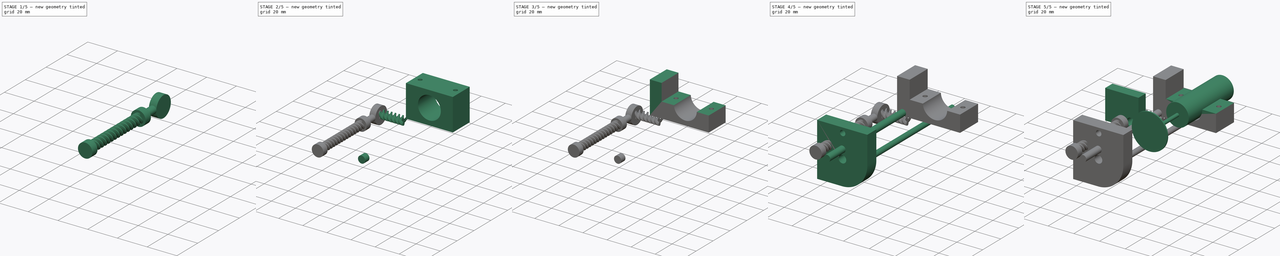
[diagram: build sequence overview — one tinted view per stage of 5, left to right]
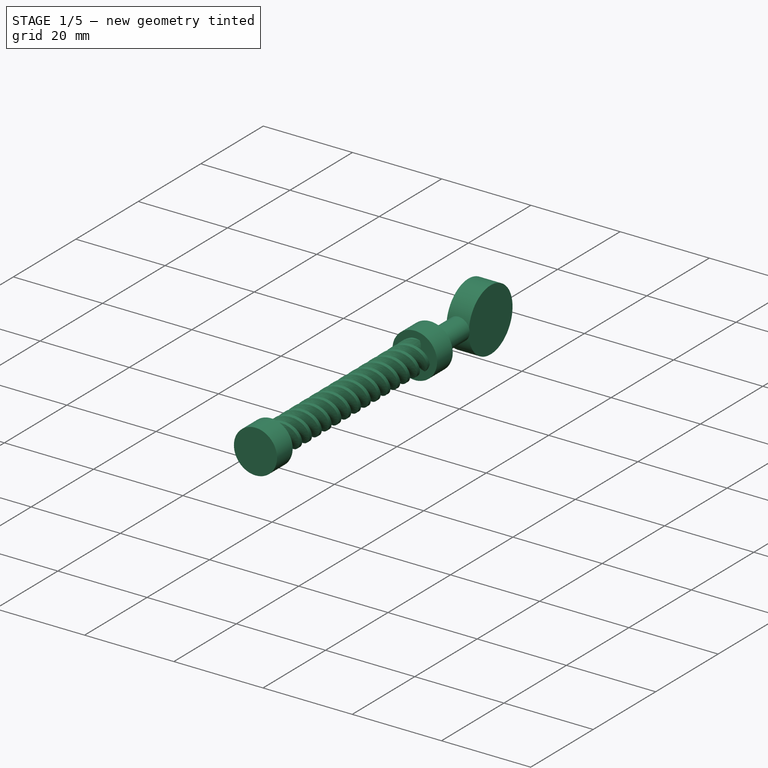
[diagram: stage 1 of 5 — iso view after this stage's code; geometry added in this stage tinted green]
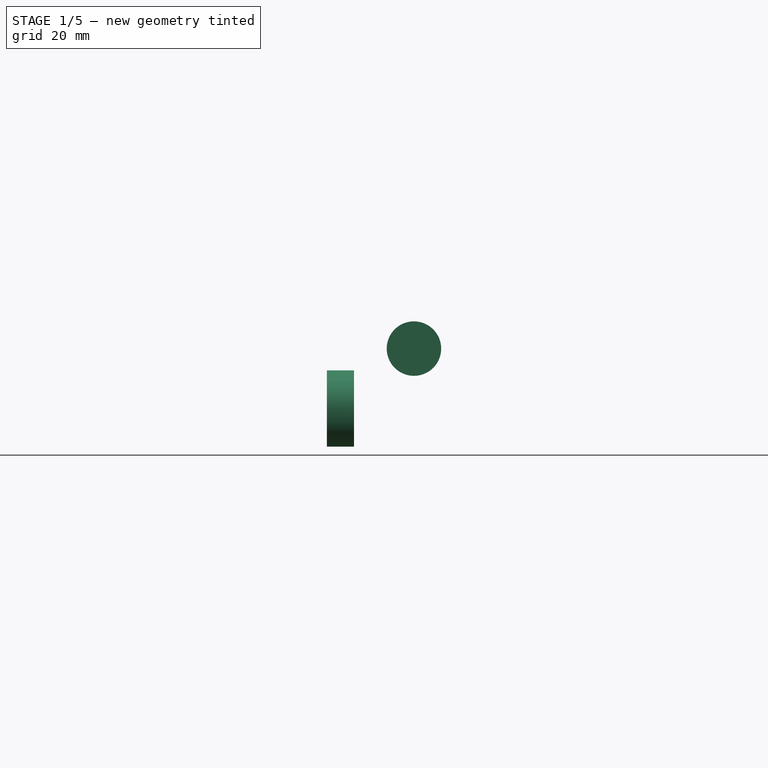
[diagram: stage 1 of 5 — front view after this stage's code; geometry added in this stage tinted green]
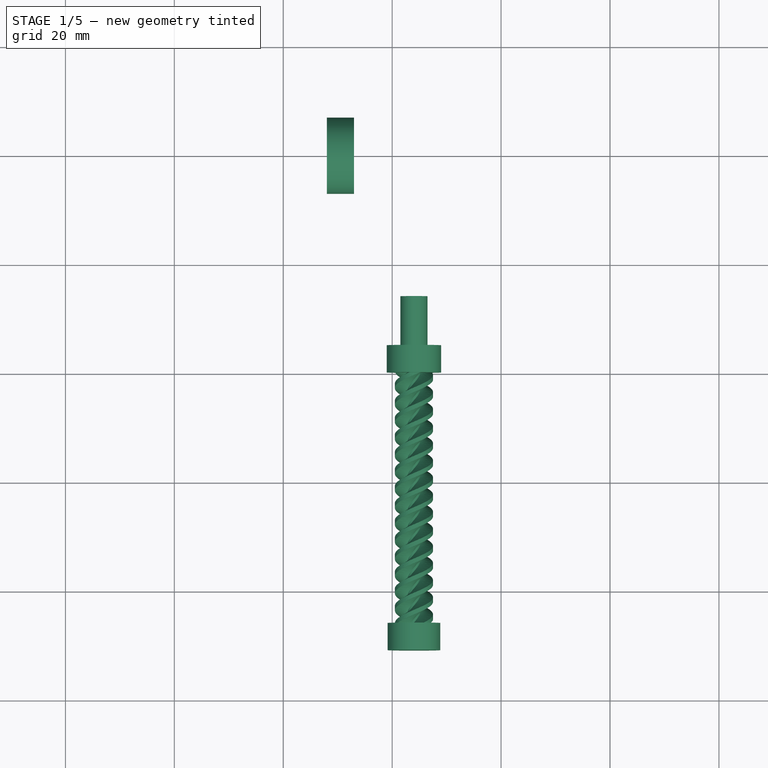
[diagram: stage 1 of 5 — top view after this stage's code; geometry added in this stage tinted green]
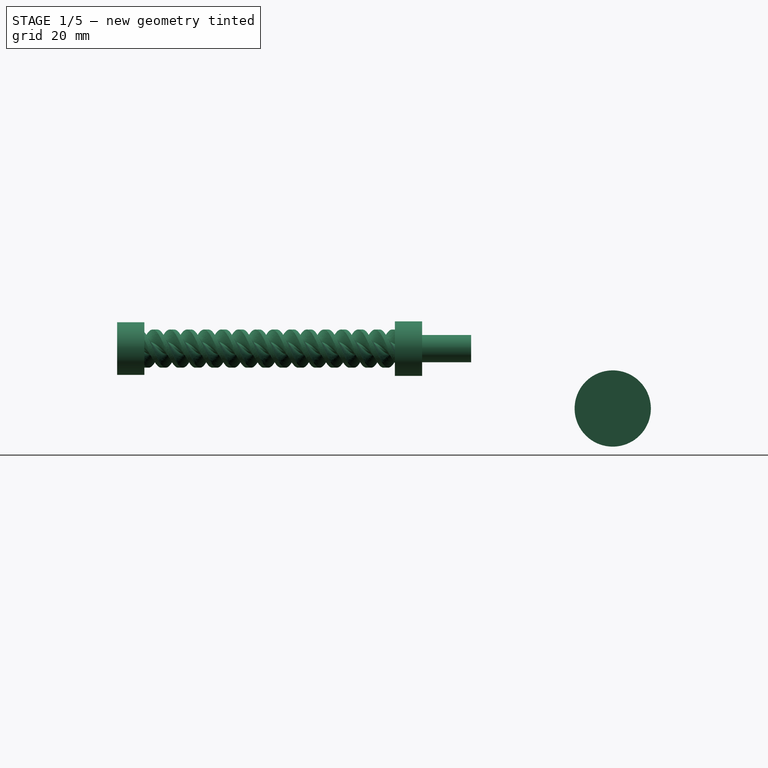
[diagram: stage 1 of 5 — right view after this stage's code; geometry added in this stage tinted green]
FCSTD DOCUMENT  (FreeCAD 0.19R24054 (Git))
Label: rod cutting attachment
License: All rights reserved
LicenseURL: http://en.wikipedia.org/wiki/All_rights_reserved
objects: Sketcher::SketchObject×14, PartDesign::Pad×10, PartDesign::Body×7, Part::Cylinder×6, Part::FeaturePython×5, PartDesign::Pocket×4, PartDesign::ShapeBinder×2, Part::MultiFuse×2, App::DocumentObjectGroup×1, PartDesign::FeatureBase×1
note: 65 computed .brp shape members not serialized (recipe doc carries the construction recipe); baked Part::Feature solids carry a one-line shape summary decoded from their .brp

FEATURE [PartDesign::Body] Body005  label="stopper"
  Group = -> [Sketch010,Pad008,Sketch011,Pocket002]
  Origin = -> Origin005
  Placement = pos=(4,0,-2) rot=(0,0,1;0rad)
  Tip = -> Pocket002
FEATURE [Part::FeaturePython] wormgear  label="distancer screw"  # WARN: FeaturePython — macro-defined, semantics opaque (R4)
  Placement = pos=(-36,-86,-11) rot=(1,0,0;4.71239rad)
  beta = 30.9638
  clearance = 0.25
  diameter = 5
  head = 0
  height = 50
  module = 1
  pressure_angle = 20
  reverse_pitch = false
  teeth = 3
  version = 0.0.3
FEATURE [PartDesign::ShapeBinder] ShapeBinder001
  Placement = pos=(-36,-86,-11) rot=(-1,0,0;1.5708rad)
  Support = -> [wormgear]
  TraceSupport = false
FEATURE [Sketcher::SketchObject] Sketch012
  FullyConstrained = false
  MapMode = 5
  Placement = pos=(-36,-86,-11) rot=(1,0,0;1.5708rad)
  Support = -> [ShapeBinder001]
  sketch-geometry (1):
    g0: Circle CenterX=0 CenterY=0 CenterZ=0 NormalX=0 NormalY=0 NormalZ=1 AngleXU=0 Radius=4.83098
  constraints (1):
    c: Coincident(g0,g-1)
FEATURE [PartDesign::Pad] Pad009
  Direction = (1,1,1)
  Length = 5
  Length2 = 100
  Placement = pos=(-36,-86,-11) rot=(-1,0,0;1.5708rad)
  Profile = -> Sketch012
  Refine = true
  Type = 0
FEATURE [Part::Cylinder] Cylinder003  label="lock handle"
  Angle = 360
  AttacherType = Attacher::AttachEngine3D
  Height = 5
  Placement = pos=(-47,0,-22) rot=(0,-1,0;1.5708rad)
  Radius = 7
FEATURE [Part::Cylinder] Cylinder004  label="Cylinder"
  Angle = 360
  AttacherType = Attacher::AttachEngine3D
  Height = 12
  Placement = pos=(-36,-38,-11) rot=(-0.57735,-0.57735,-0.57735;2.0944rad)
  Radius = 2.5
FEATURE [Part::Cylinder] Cylinder005
  Angle = 360
  AttacherType = Attacher::AttachEngine3D
  Height = 5
  Placement = pos=(-36,-35,-11) rot=(1,0,0;1.5708rad)
  Radius = 5
FEATURE [Part::MultiFuse] Fusion001  label="distancer"
  Refine = true
  Shapes = -> [wormgear,Cylinder004,Cylinder005,Body006]
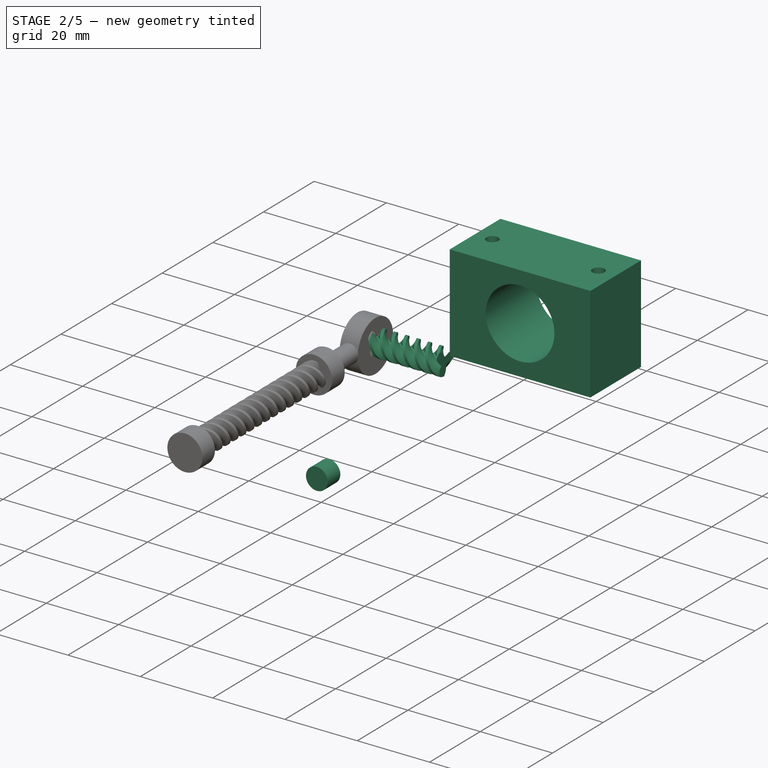
[diagram: stage 2 of 5 — iso view after this stage's code; geometry added in this stage tinted green]
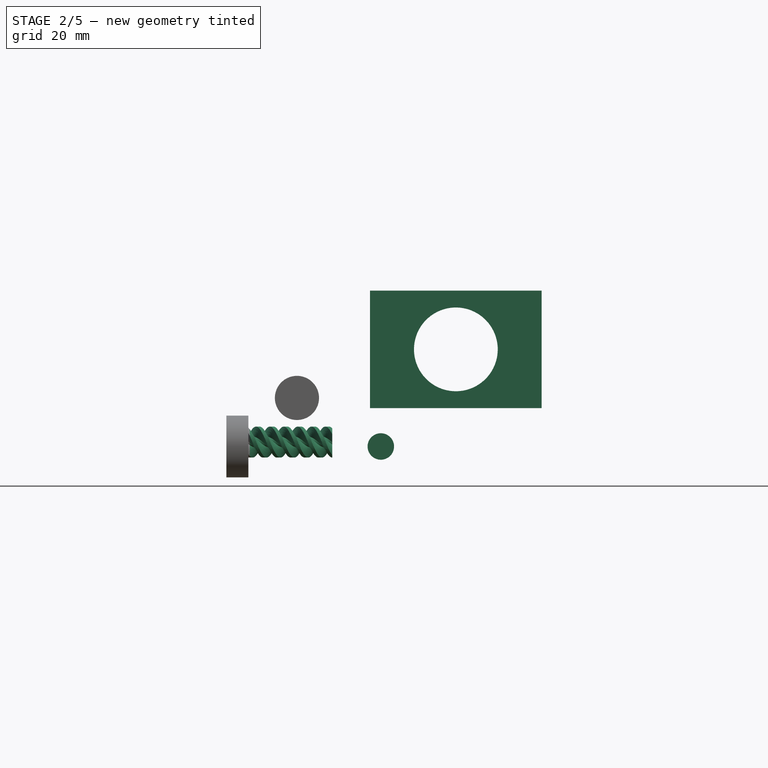
[diagram: stage 2 of 5 — front view after this stage's code; geometry added in this stage tinted green]
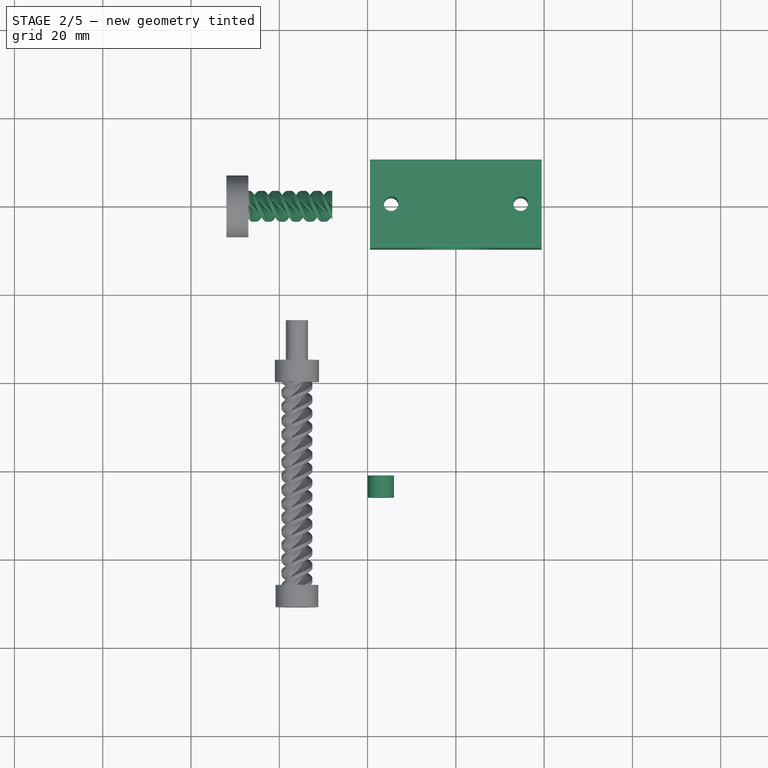
[diagram: stage 2 of 5 — top view after this stage's code; geometry added in this stage tinted green]
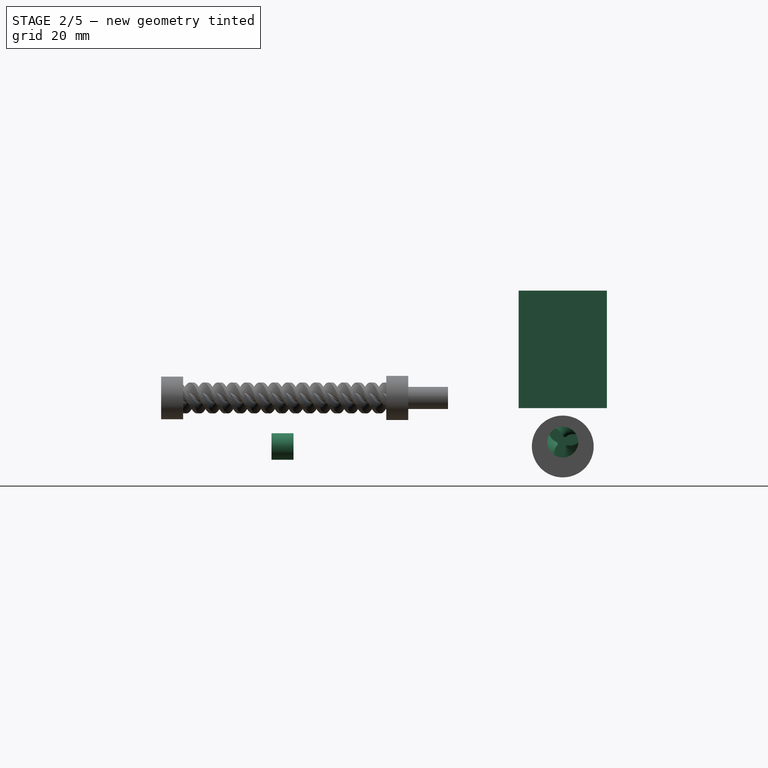
[diagram: stage 2 of 5 — right view after this stage's code; geometry added in this stage tinted green]
FEATURE [Sketcher::SketchObject] Sketch
  FullyConstrained = false
  MapMode = 5
  Placement = pos=(0,0,0) rot=(1,0,0;1.5708rad)
  Support = -> [XZ_Plane]
  sketch-geometry (5):
    g0: Circle CenterX=0 CenterY=0 CenterZ=0 NormalX=0 NormalY=0 NormalZ=1 AngleXU=0 Radius=9.48676
    g1: LineSegment StartX=-19.4408 StartY=13.3116 StartZ=0 EndX=19.4408 EndY=13.3116 EndZ=0
    g2: LineSegment StartX=19.4408 StartY=13.3116 StartZ=0 EndX=19.4408 EndY=-13.3116 EndZ=0
    g3: LineSegment StartX=19.4408 StartY=-13.3116 StartZ=0 EndX=-19.4408 EndY=-13.3116 EndZ=0
    g4: LineSegment StartX=-19.4408 StartY=-13.3116 StartZ=0 EndX=-19.4408 EndY=13.3116 EndZ=0
  constraints (10):
    c: Coincident(g0,g-1)
    c: Coincident(g1,g2)
    c: Coincident(g2,g3)
    c: Coincident(g3,g4)
    c: Coincident(g4,g1)
    c: Horizontal(g1)
    c: Horizontal(g3)
    c: Vertical(g2)
    c: Vertical(g4)
    c: Symmetric(g2,g1,g0)
FEATURE [PartDesign::Pad] Pad
  Direction = (1,1,1)
  Length = 20
  Length2 = 100
  Midplane = true
  Placement = pos=(0,0,0) rot=(1,0,0;1.5708rad)
  Profile = -> Sketch
  Refine = true
  Type = 0
FEATURE [PartDesign::Body] Body001
  Group = -> [Sketch001,Pad001]
  Origin = -> Origin001
  Tip = -> Pad001
FEATURE [Sketcher::SketchObject] Sketch002
  FullyConstrained = false
  MapMode = 5
  Support = -> [XY_Plane]
  sketch-geometry (2):
    g0: Circle CenterX=14.6758 CenterY=0 CenterZ=0 NormalX=0 NormalY=0 NormalZ=1 AngleXU=0 Radius=1.66625
    g1: Circle CenterX=-14.6758 CenterY=0 CenterZ=0 NormalX=0 NormalY=0 NormalZ=1 AngleXU=0 Radius=1.66625
  constraints (3):
    c: PointOnObject(g0,g-1)
    c: Equal(g1,g0)
    c: Symmetric(g1,g0,g-2)
FEATURE [PartDesign::Pocket] Pocket
  BaseFeature = -> Pad
  Length = 5
  Length2 = 100
  Midplane = true
  Placement = pos=(0,0,0) rot=(1,0,0;1.5708rad)
  Profile = -> Sketch002
  Refine = true
  Type = 1
FEATURE [PartDesign::Body] Body003  label="spindle block low"
  BaseFeature = -> Slice_child3
  Group = -> [BaseFeature,ShapeBinder,Sketch006,Pad005,Sketch014,Pad010]
  Origin = -> Origin003
  Placement = pos=(0,0,-13) rot=(0,0,1;0rad)
  Tip = -> Pad010
FEATURE [Part::Cylinder] Cylinder002  label="protection"
  Angle = 360
  AttacherType = Attacher::AttachEngine3D
  Height = 5
  Placement = pos=(-17,-61,-22) rot=(-1,0,0;4.71239rad)
  Radius = 3
FEATURE [Part::FeaturePython] wormgear001  label="lock gear"  # WARN: FeaturePython — macro-defined, semantics opaque (R4)
  Placement = pos=(-28,0,-21) rot=(0,1,0;4.71239rad)
  beta = 30.9638
  clearance = 0.25
  diameter = 5
  head = 0
  height = 20
  module = 1
  pressure_angle = 20
  reverse_pitch = false
  teeth = 3
  version = 0.0.3
FEATURE [Part::MultiFuse] Fusion  label="lock"
  Refine = true
  Shapes = -> [wormgear001,Cylinder003]
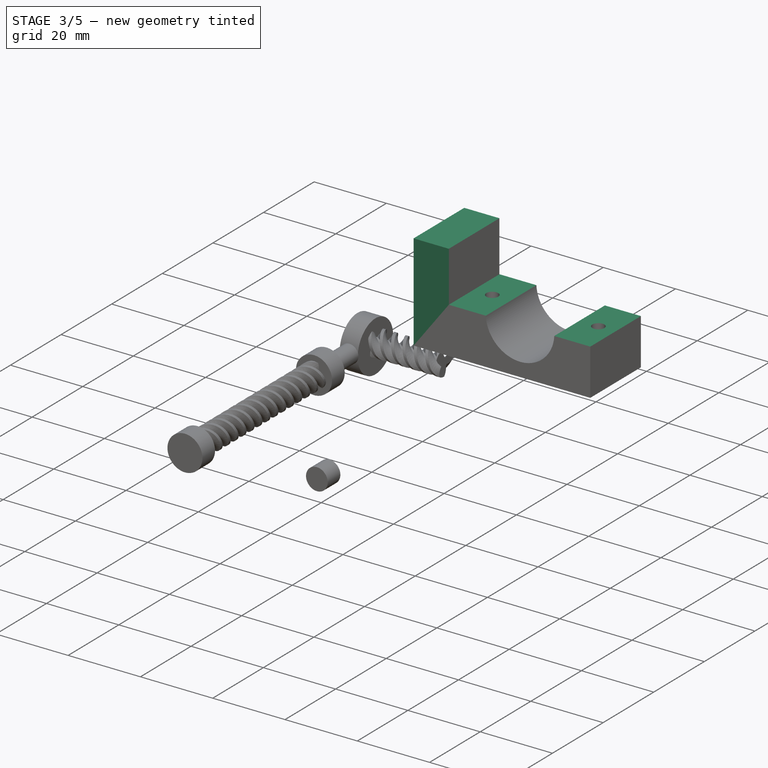
[diagram: stage 3 of 5 — iso view after this stage's code; geometry added in this stage tinted green]
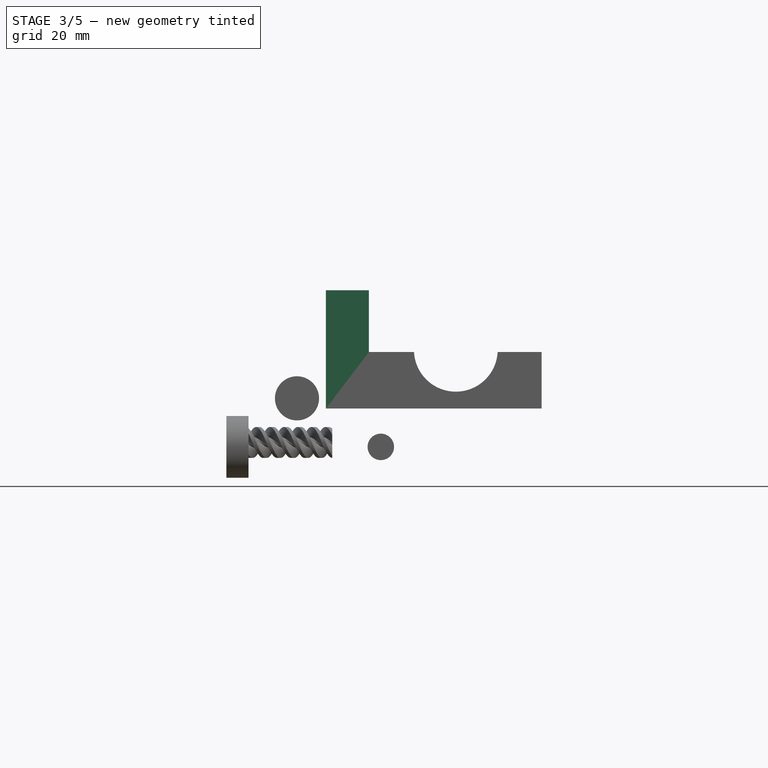
[diagram: stage 3 of 5 — front view after this stage's code; geometry added in this stage tinted green]
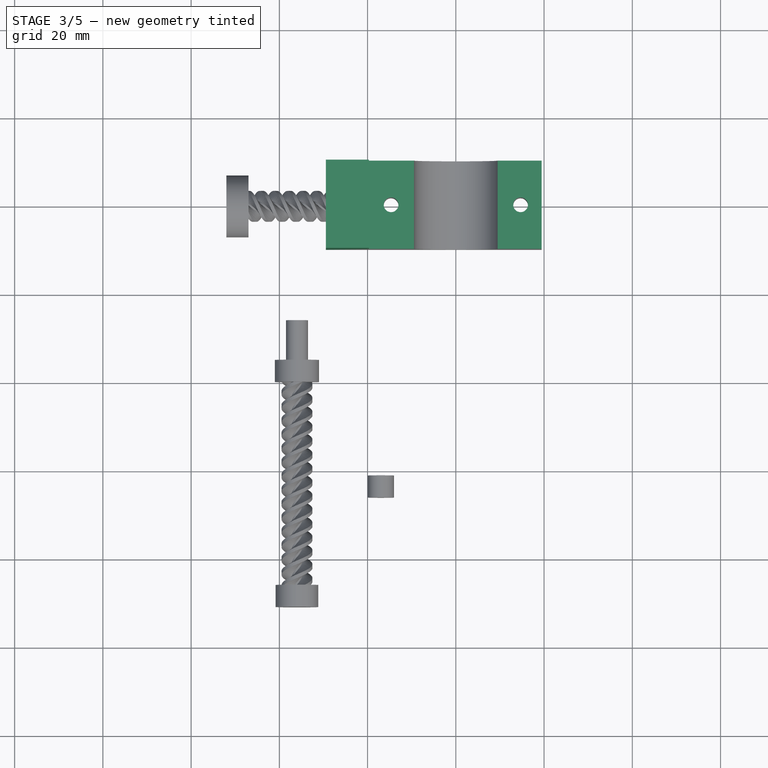
[diagram: stage 3 of 5 — top view after this stage's code; geometry added in this stage tinted green]
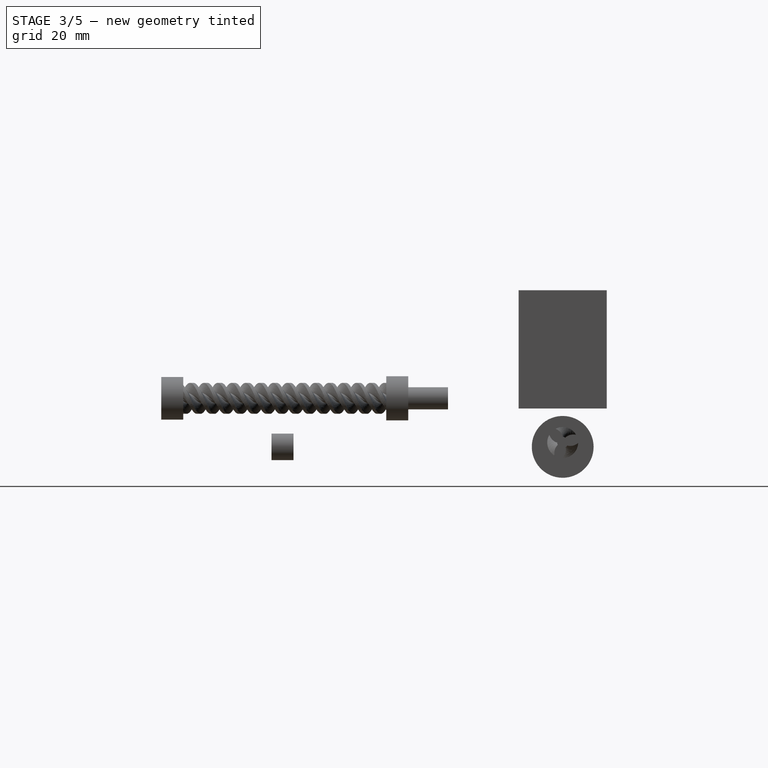
[diagram: stage 3 of 5 — right view after this stage's code; geometry added in this stage tinted green]
FEATURE [Sketcher::SketchObject] Sketch001
  FullyConstrained = false
  MapMode = 5
  Support = -> [XY_Plane001]
  sketch-geometry (4):
    g0: LineSegment StartX=-31.0492 StartY=18.9281 StartZ=0 EndX=30.4145 EndY=18.9281 EndZ=0
    g1: LineSegment StartX=30.4145 StartY=18.9281 StartZ=0 EndX=30.4145 EndY=-16.7716 EndZ=0
    g2: LineSegment StartX=30.4145 StartY=-16.7716 StartZ=0 EndX=-31.0492 EndY=-16.7716 EndZ=0
    g3: LineSegment StartX=-31.0492 StartY=-16.7716 StartZ=0 EndX=-31.0492 EndY=18.9281 EndZ=0
  constraints (8):
    c: Coincident(g0,g1)
    c: Coincident(g1,g2)
    c: Coincident(g2,g3)
    c: Coincident(g3,g0)
    c: Horizontal(g0)
    c: Horizontal(g2)
    c: Vertical(g1)
    c: Vertical(g3)
FEATURE [PartDesign::Pad] Pad001
  Direction = (1,1,1)
  Length = 1
  Length2 = 100
  Midplane = true
  Profile = -> Sketch001
  Refine = true
  Type = 0
FEATURE [PartDesign::Body] Body
  Group = -> [Sketch,Pad,Sketch002,Pocket]
  Origin = -> Origin
  Tip = -> Pocket
FEATURE [Part::FeaturePython] Slice  # WARN: FeaturePython — macro-defined, semantics opaque (R4)
  Base = -> Body
  Mode = 1
  Tolerance = 0
  Tools = -> [Body001]
FEATURE [Part::FeaturePython] Slice_child3  label="Slice.3"  # WARN: FeaturePython — macro-defined, semantics opaque (R4)
  Base = -> Slice
  FilterType = 1
  Invert = false
  OverrideMaxVal = 0
  WindowFrom = 80
  WindowTo = 100
  items = 3
FEATURE [PartDesign::Body] Body002  label="spindle"
  Group = -> [Sketch003,Pad002,Sketch004,Pad003,Sketch005,Pad004]
  Origin = -> Origin002
  Placement = pos=(0,0,-13) rot=(0,0,1;0rad)
  Tip = -> Pad004
FEATURE [PartDesign::FeatureBase] BaseFeature
  BaseFeature = -> Slice_child3
FEATURE [PartDesign::ShapeBinder] ShapeBinder
  Support = -> [BaseFeature]
  TraceSupport = false
FEATURE [Sketcher::SketchObject] Sketch006
  ExternalGeometry = -> [BaseFeature]
  FullyConstrained = true
  MapMode = 5
  Placement = pos=(-19.4408,0,0) rot=(0.57735,-0.57735,-0.57735;2.0944rad)
  Support = -> [ShapeBinder]
  sketch-geometry (4):
    g0: LineSegment StartX=-10 StartY=-13.3116 StartZ=0 EndX=10 EndY=-13.3116 EndZ=0
    g1: LineSegment StartX=10 StartY=-13.3116 StartZ=0 EndX=10 EndY=-0.5 EndZ=0
    g2: LineSegment StartX=10 StartY=-0.5 StartZ=0 EndX=-10 EndY=-0.5 EndZ=0
    g3: LineSegment StartX=-10 StartY=-0.5 StartZ=0 EndX=-10 EndY=-13.3116 EndZ=0
  constraints (9):
    c: Coincident(g0,g1)
    c: Coincident(g1,g2)
    c: Coincident(g2,g3)
    c: Coincident(g3,g0)
    c: Horizontal(g2)
    c: Vertical(g1)
    c: Coincident(g0,g-3)
    c: Coincident(g0,g-3)
    c: Coincident(g2,g-4)
FEATURE [PartDesign::Pad] Pad005
  BaseFeature = -> BaseFeature
  Direction = (1,1,1)
  Length = 10
  Length2 = 100
  Profile = -> Sketch006
  Refine = true
  Type = 0
FEATURE [Sketcher::SketchObject] Sketch014
  ExternalGeometry = -> [Pad005]
  FullyConstrained = false
  MapMode = 5
  Placement = pos=(2e-16,-1e-16,-0.5) rot=(0,0,1;0rad)
  Support = -> [Pad005]
  sketch-geometry (4):
    g0: LineSegment StartX=-29.4408 StartY=10 StartZ=0 EndX=-19.7025 EndY=10 EndZ=0
    g1: LineSegment StartX=-19.7025 StartY=10 StartZ=0 EndX=-19.7025 EndY=-10 EndZ=0
    g2: LineSegment StartX=-19.7025 StartY=-10 StartZ=0 EndX=-29.4408 EndY=-10 EndZ=0
    g3: LineSegment StartX=-29.4408 StartY=-10 StartZ=0 EndX=-29.4408 EndY=10 EndZ=0
  constraints (9):
    c: Coincident(g0,g1)
    c: Coincident(g1,g2)
    c: Coincident(g2,g3)
    c: Coincident(g3,g0)
    c: Horizontal(g0)
    c: Horizontal(g2)
    c: Vertical(g1)
    c: Coincident(g0,g-3)
    c: Coincident(g-4,g2)
FEATURE [PartDesign::Pad] Pad010
  BaseFeature = -> Pad005
  Direction = (1,1,1)
  Length = 14
  Length2 = 100
  Profile = -> Sketch014
  Refine = true
  Type = 0
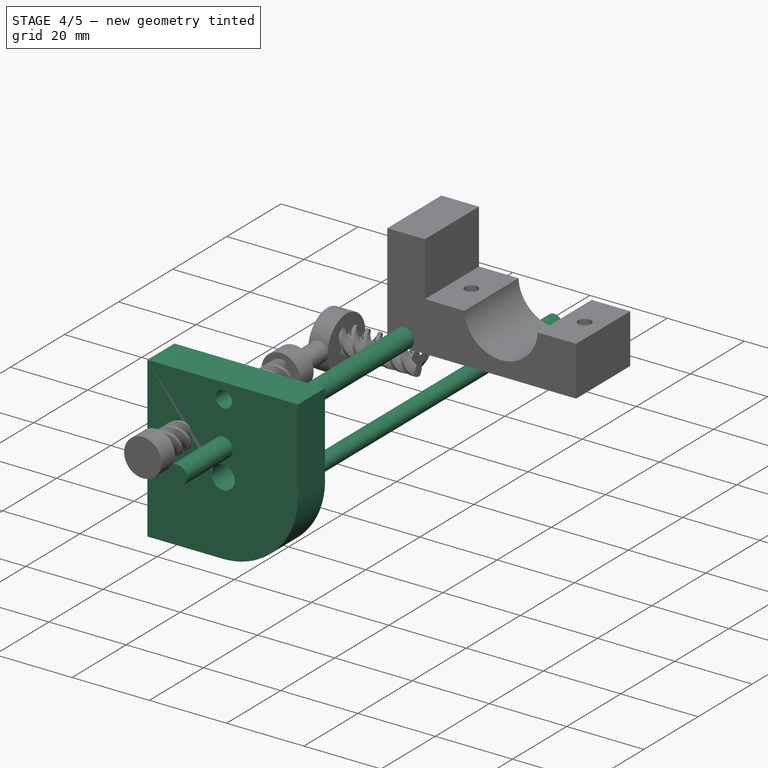
[diagram: stage 4 of 5 — iso view after this stage's code; geometry added in this stage tinted green]
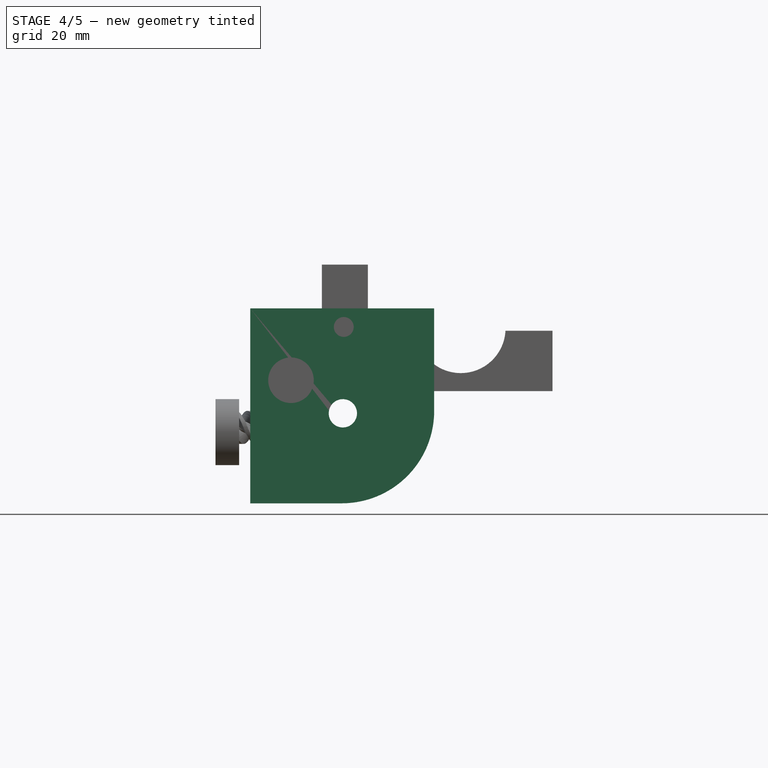
[diagram: stage 4 of 5 — front view after this stage's code; geometry added in this stage tinted green]
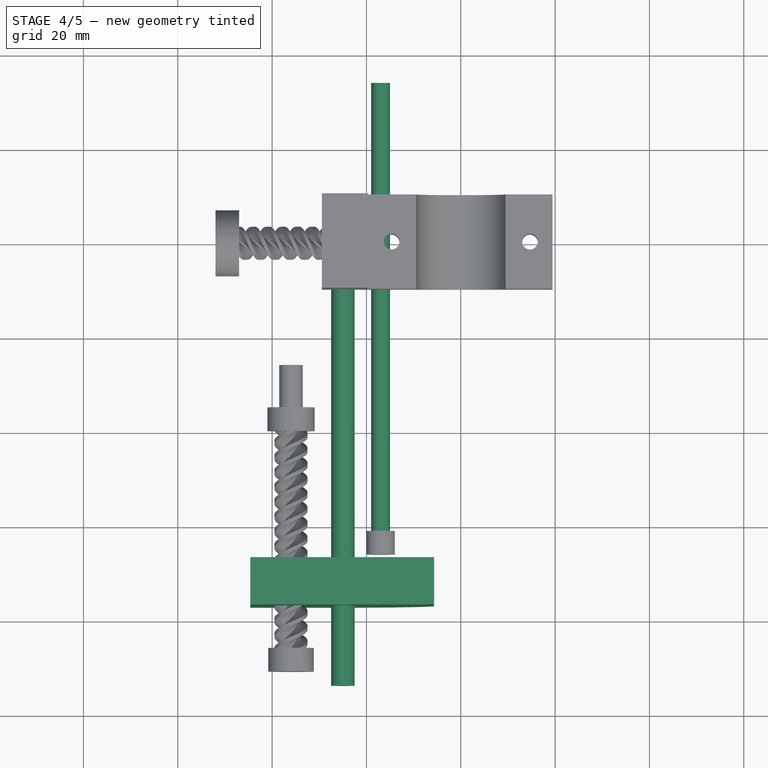
[diagram: stage 4 of 5 — top view after this stage's code; geometry added in this stage tinted green]
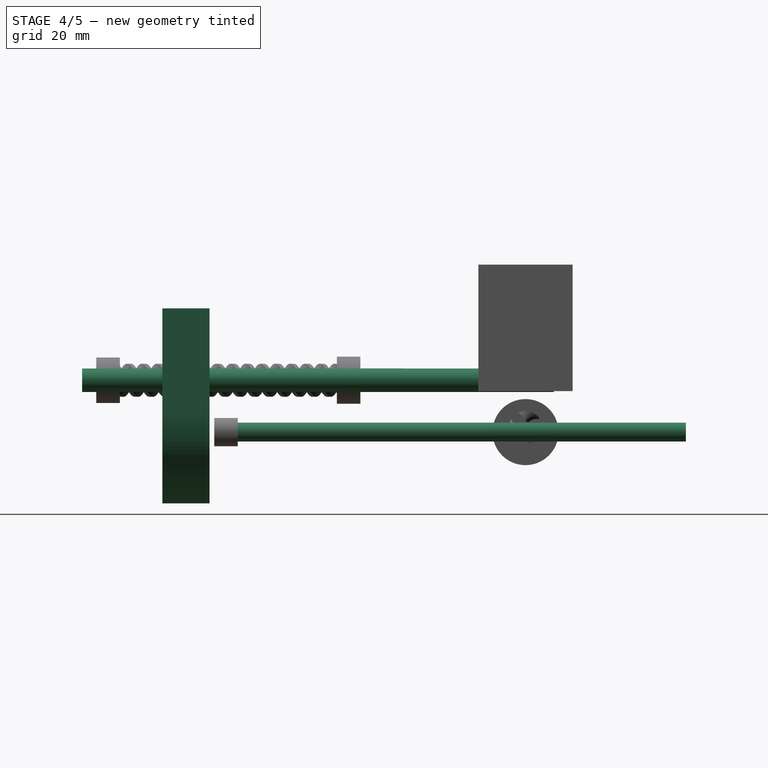
[diagram: stage 4 of 5 — right view after this stage's code; geometry added in this stage tinted green]
FEATURE [Sketcher::SketchObject] Sketch007
  AttachmentOffset = pos=(0,0,67) rot=(0,0,1;0rad)
  FullyConstrained = false
  MapMode = 5
  Placement = pos=(0,-67,1.49e-14) rot=(1,0,0;1.5708rad)
  Support = -> [XZ_Plane004]
  sketch-geometry (5):
    g0: LineSegment StartX=-44.6272 StartY=4.22384 StartZ=0 EndX=-5.63904 EndY=4.22384 EndZ=0
    g1: LineSegment StartX=-5.63904 StartY=4.22384 StartZ=0 EndX=-5.63904 EndY=-17.504 EndZ=0
    g2: LineSegment StartX=-25.2347 StartY=-37.0996 StartZ=0 EndX=-44.6272 EndY=-37.0996 EndZ=0
    g3: LineSegment StartX=-44.6272 StartY=-37.0996 StartZ=0 EndX=-44.6272 EndY=4.22384 EndZ=0
    g4: ArcOfCircle CenterX=-25.2347 CenterY=-17.504 CenterZ=0 NormalX=0 NormalY=0 NormalZ=1 AngleXU=0 Radius=19.5957 StartAngle=4.71239 EndAngle=6.28319
  constraints (9):
    c: Coincident(g0,g1)
    c: Coincident(g2,g3)
    c: Coincident(g3,g0)
    c: Horizontal(g0)
    c: Horizontal(g2)
    c: Vertical(g1)
    c: Vertical(g3)
    c: Tangent(g2,g4) = 1.5708
    c: Tangent(g1,g4) = 1.5708
FEATURE [PartDesign::Pad] Pad006
  Direction = (1,1,1)
  Length = 10
  Length2 = 100
  Placement = pos=(0,0,0) rot=(1,0,0;1.5708rad)
  Profile = -> Sketch007
  Refine = true
  Type = 0
FEATURE [Sketcher::SketchObject] Sketch008
  AttachmentOffset = pos=(0,-1,0) rot=(0,0,1;0rad)
  FullyConstrained = false
  MapMode = 5
  Placement = pos=(6.4e-15,-67,1) rot=(-1,0,0;1.5708rad)
  Support = -> [Pad006]
  sketch-geometry (1):
    g0: Circle CenterX=-24.808 CenterY=0.705665 CenterZ=0 NormalX=0 NormalY=0 NormalZ=1 AngleXU=0 Radius=2.10652
FEATURE [PartDesign::Pocket] Pocket001
  BaseFeature = -> Pad006
  Length = 5
  Length2 = 100
  Placement = pos=(0,0,0) rot=(1,0,0;1.5708rad)
  Profile = -> Sketch008
  Refine = true
  Type = 1
FEATURE [PartDesign::Body] Body006  label="handle"
  Group = -> [ShapeBinder001,Sketch012,Pad009]
  Origin = -> Origin006
  Tip = -> Pad009
FEATURE [Part::Cylinder] Cylinder  label="main rail"
  Angle = 360
  AttacherType = Attacher::AttachEngine3D
  Height = 100
  Placement = pos=(-25,6,-11) rot=(1,0,0;1.5708rad)
  Radius = 2.5
FEATURE [Sketcher::SketchObject] Sketch013
  FullyConstrained = false
  MapMode = 5
  Placement = pos=(7.3e-15,-77,9.21e-14) rot=(1,0,0;1.5708rad)
  Support = -> [Pocket001]
  sketch-geometry (1):
    g0: Circle CenterX=-25.0015 CenterY=-18.0147 CenterZ=0 NormalX=0 NormalY=0 NormalZ=1 AngleXU=0 Radius=3
  constraints (1):
    c: Diameter(g0) = 6
FEATURE [PartDesign::Pocket] Pocket003
  BaseFeature = -> Pocket001
  Length = 5
  Length2 = 100
  Placement = pos=(0,0,0) rot=(1,0,0;1.5708rad)
  Profile = -> Sketch013
  Refine = true
  Type = 1
FEATURE [PartDesign::Body] Body004  label="bar guide"
  Group = -> [Sketch007,Pad006,Sketch008,Pocket001,Sketch013,Pocket003]
  Origin = -> Origin004
  Placement = pos=(0,0,7) rot=(0,0,1;0rad)
  Tip = -> Pocket003
FEATURE [Part::Cylinder] Cylinder001  label="distancer 2"
  Angle = 360
  AttacherType = Attacher::AttachEngine3D
  Height = 100
  Placement = pos=(-17,34,-22) rot=(1,0,0;1.5708rad)
  Radius = 2
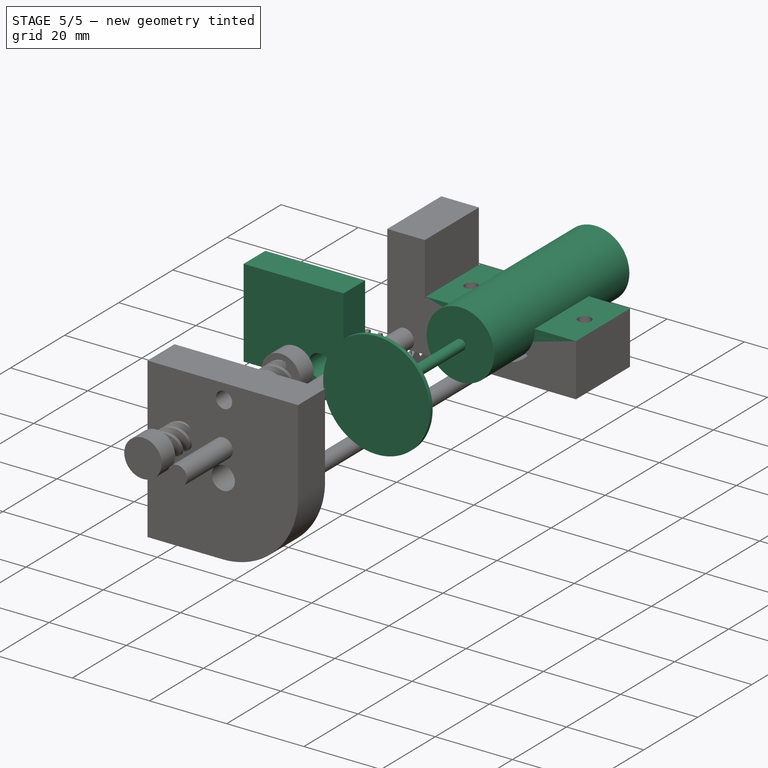
[diagram: stage 5 of 5 — iso view after this stage's code; geometry added in this stage tinted green]
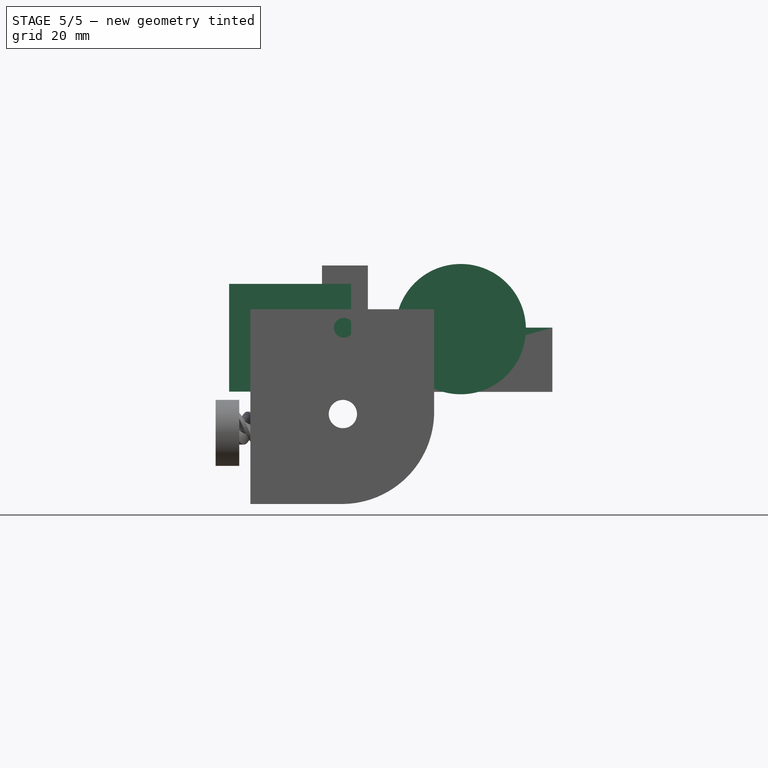
[diagram: stage 5 of 5 — front view after this stage's code; geometry added in this stage tinted green]
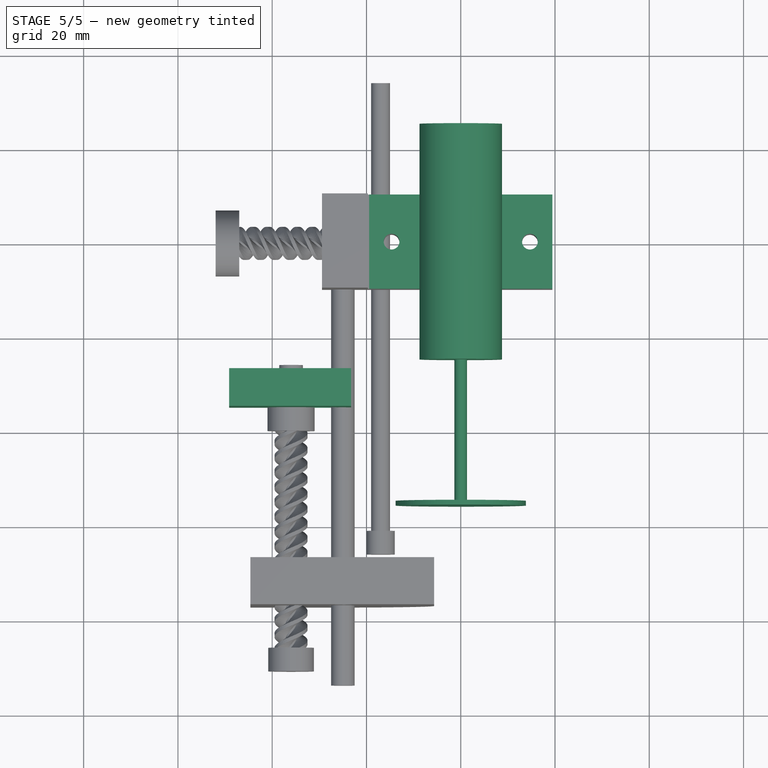
[diagram: stage 5 of 5 — top view after this stage's code; geometry added in this stage tinted green]
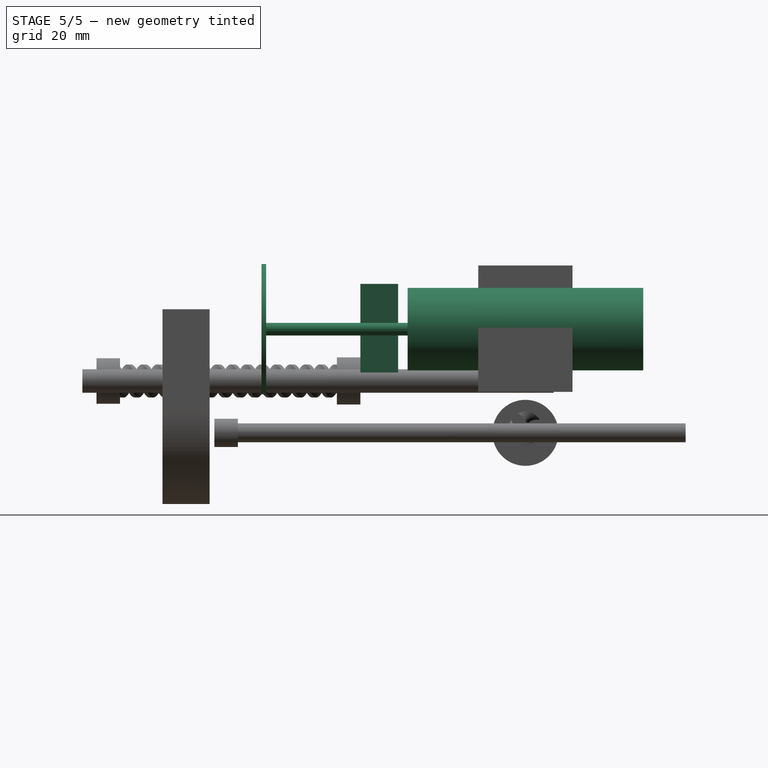
[diagram: stage 5 of 5 — right view after this stage's code; geometry added in this stage tinted green]
FEATURE [Part::FeaturePython] Slice_child0  label="spindle block high"  # WARN: FeaturePython — macro-defined, semantics opaque (R4)
  Base = -> Slice
  FilterType = 1
  Invert = false
  OverrideMaxVal = 0
  Placement = pos=(0,0,-13) rot=(0,0,1;0rad)
  WindowFrom = 80
  WindowTo = 100
  items = 0
FEATURE [App::DocumentObjectGroup] GrExplode_Slice  label="Exploded Slice"
  Group = -> [Slice_child0,Slice_child3]
FEATURE [Sketcher::SketchObject] Sketch003
  FullyConstrained = false
  MapMode = 5
  Placement = pos=(0,0,0) rot=(1,0,0;1.5708rad)
  Support = -> [XZ_Plane002]
  sketch-geometry (1):
    g0: Circle CenterX=0 CenterY=0 CenterZ=0 NormalX=0 NormalY=0 NormalZ=1 AngleXU=0 Radius=8.75124
  constraints (1):
    c: Coincident(g0,g-1)
FEATURE [PartDesign::Pad] Pad002
  Direction = (1,1,1)
  Length = 50
  Length2 = 100
  Midplane = true
  Placement = pos=(0,0,0) rot=(1,0,0;1.5708rad)
  Profile = -> Sketch003
  Refine = true
  Type = 0
FEATURE [Sketcher::SketchObject] Sketch004
  FullyConstrained = false
  MapMode = 5
  Placement = pos=(0,-25,1.67e-14) rot=(1,0,0;1.5708rad)
  Support = -> [Pad002]
  sketch-geometry (1):
    g0: Circle CenterX=0 CenterY=0 CenterZ=0 NormalX=0 NormalY=0 NormalZ=1 AngleXU=0 Radius=1.33894
  constraints (1):
    c: Coincident(g0,g-1)
FEATURE [PartDesign::Pad] Pad003
  BaseFeature = -> Pad002
  Direction = (1,1,1)
  Length = 30
  Length2 = 100
  Placement = pos=(0,0,0) rot=(1,0,0;1.5708rad)
  Profile = -> Sketch004
  Refine = true
  Type = 0
FEATURE [Sketcher::SketchObject] Sketch005
  FullyConstrained = false
  MapMode = 5
  Placement = pos=(0,-55,2.44e-14) rot=(1,0,0;1.5708rad)
  Support = -> [Pad003]
  sketch-geometry (1):
    g0: Circle CenterX=0 CenterY=0 CenterZ=0 NormalX=0 NormalY=0 NormalZ=1 AngleXU=0 Radius=13.824
  constraints (1):
    c: Coincident(g0,g-1)
FEATURE [PartDesign::Pad] Pad004
  BaseFeature = -> Pad003
  Direction = (1,1,1)
  Length = 1
  Length2 = 100
  Placement = pos=(0,0,0) rot=(1,0,0;1.5708rad)
  Profile = -> Sketch005
  Refine = true
  Type = 0
FEATURE [Sketcher::SketchObject] Sketch010
  AttachmentOffset = pos=(0,0,27) rot=(0,0,1;0rad)
  FullyConstrained = false
  MapMode = 5
  Placement = pos=(0,-27,6e-15) rot=(1,0,0;1.5708rad)
  Support = -> [XZ_Plane005]
  sketch-geometry (5):
    g0: LineSegment StartX=-49.133 StartY=9.60637 StartZ=0 EndX=-23.2536 EndY=9.60637 EndZ=0
    g1: LineSegment StartX=-23.2536 StartY=9.60637 StartZ=0 EndX=-23.2536 EndY=-9.56347 EndZ=0
    g2: LineSegment StartX=-26.9593 StartY=-13.2692 StartZ=0 EndX=-49.133 EndY=-13.2692 EndZ=0
    g3: LineSegment StartX=-49.133 StartY=-13.2692 StartZ=0 EndX=-49.133 EndY=9.60637 EndZ=0
    g4: ArcOfCircle CenterX=-26.9593 CenterY=-9.56347 CenterZ=0 NormalX=0 NormalY=0 NormalZ=1 AngleXU=0 Radius=3.70573 StartAngle=4.71239 EndAngle=6.28319
  constraints (9):
    c: Coincident(g0,g1)
    c: Coincident(g2,g3)
    c: Coincident(g3,g0)
    c: Horizontal(g0)
    c: Horizontal(g2)
    c: Vertical(g1)
    c: Vertical(g3)
    c: Tangent(g2,g4) = 1.5708
    c: Tangent(g1,g4) = 1.5708
FEATURE [PartDesign::Pad] Pad008
  Direction = (1,1,1)
  Length = 8
  Length2 = 100
  Placement = pos=(0,0,0) rot=(1,0,0;1.5708rad)
  Profile = -> Sketch010
  Refine = true
  Type = 0
FEATURE [Sketcher::SketchObject] Sketch011
  FullyConstrained = false
  MapMode = 5
  Placement = pos=(-4e-16,-35,2.68e-14) rot=(1,0,0;1.5708rad)
  Support = -> [Pad008]
  sketch-geometry (1):
    g0: Circle CenterX=-29.3087 CenterY=-9.06701 CenterZ=0 NormalX=0 NormalY=0 NormalZ=1 AngleXU=0 Radius=3
  constraints (1):
    c: Diameter(g0) = 6
FEATURE [PartDesign::Pocket] Pocket002
  BaseFeature = -> Pad008
  Length = 5
  Length2 = 100
  Placement = pos=(0,0,0) rot=(1,0,0;1.5708rad)
  Profile = -> Sketch011
  Refine = true
  Type = 1
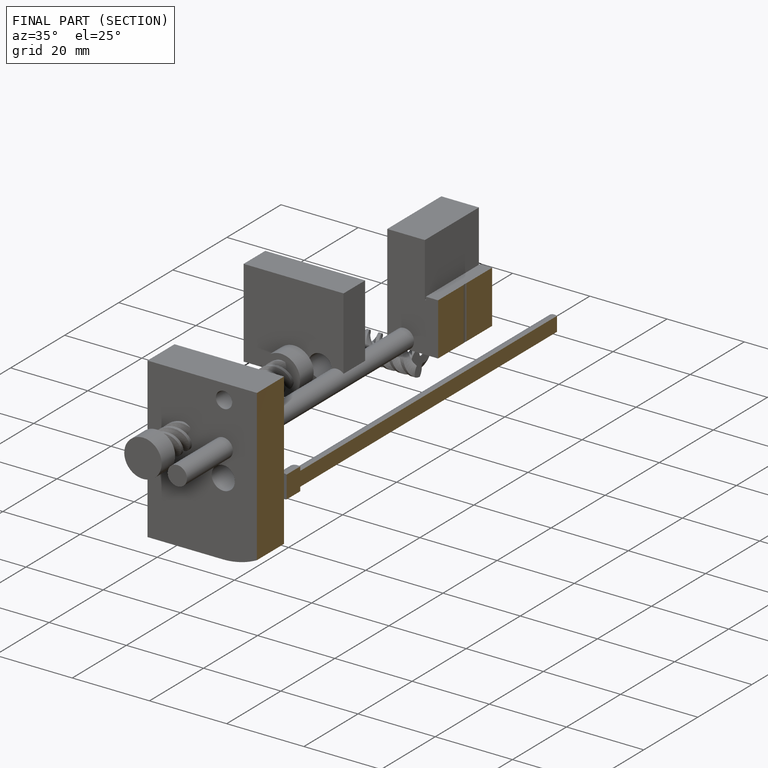
[diagram: finished part — half-section view (interior)]
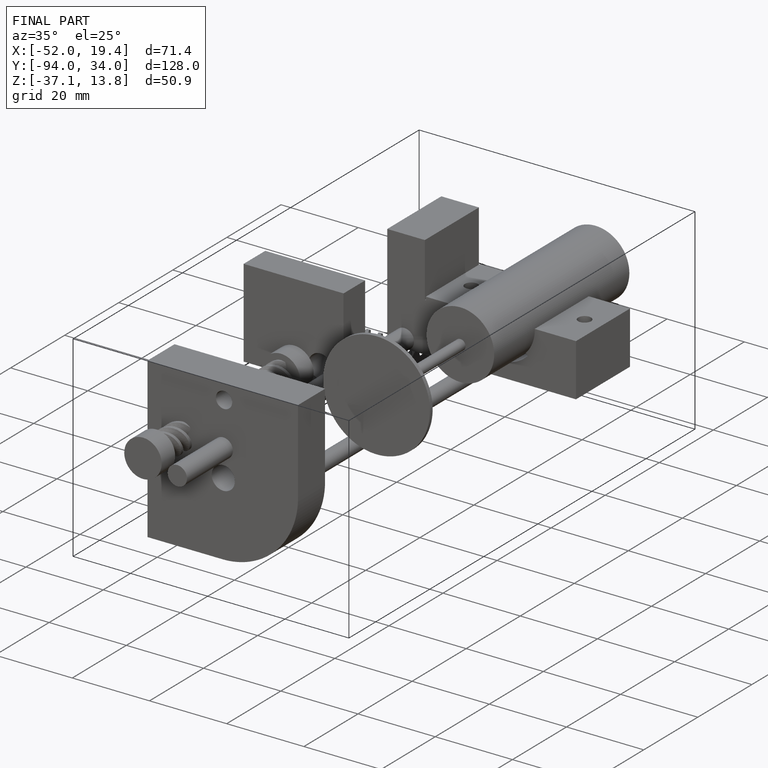
[diagram: finished part — iso view with bounding-box wireframe]
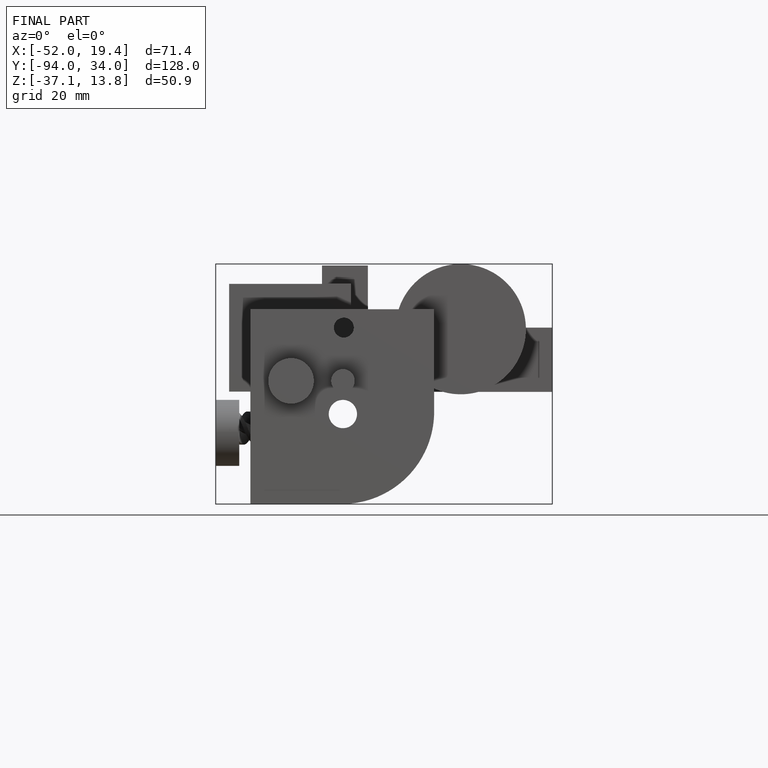
[diagram: finished part — front view with bounding-box wireframe]
